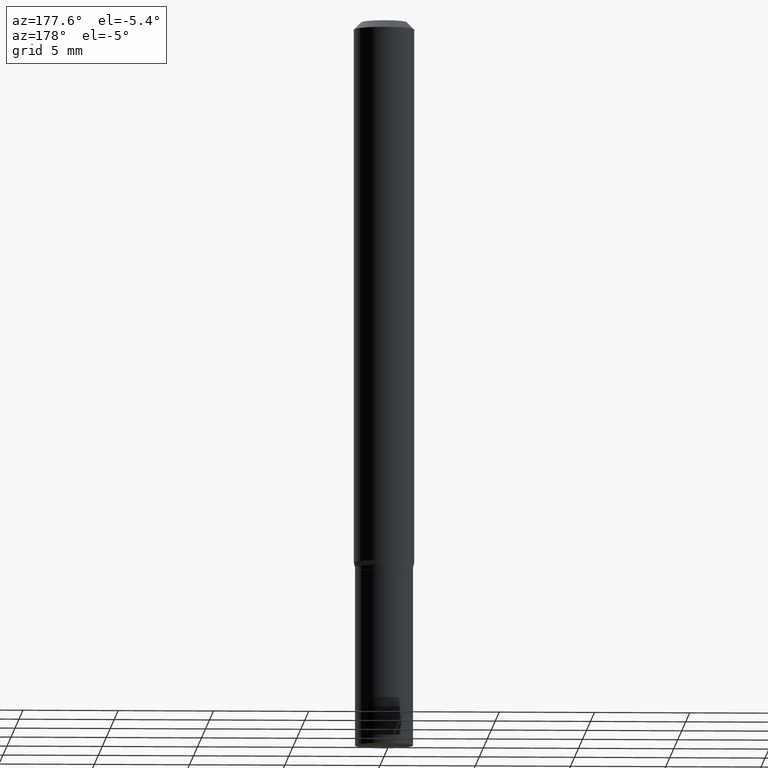
[diagram: clean part render]
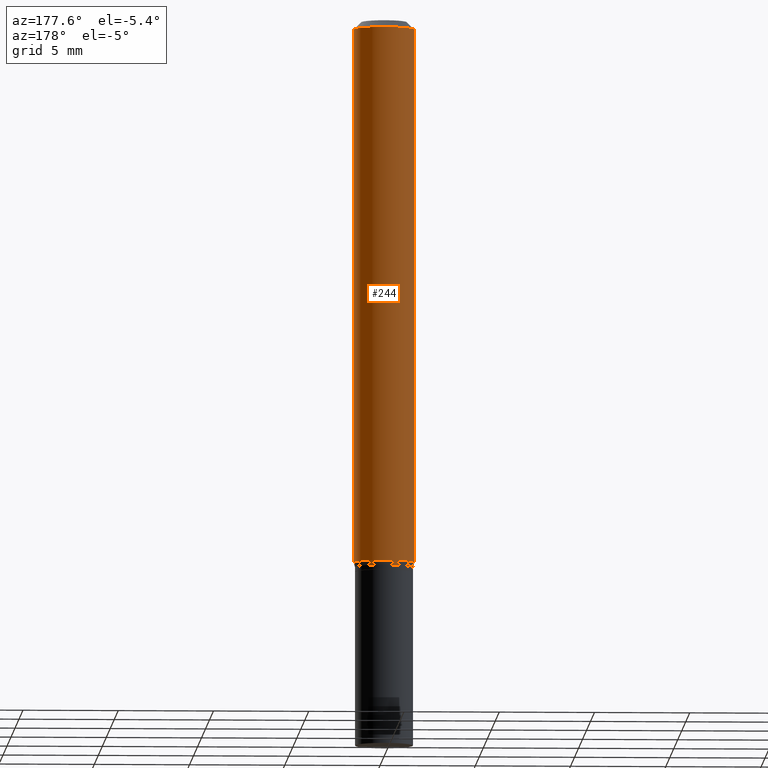
[diagram: same view with one face highlighted and labeled with its STEP entity id]
A machine part, auxiliary view. The second image highlights one B-rep face of the part: STEP entity #244.
In plain terms, the highlighted cylindrical surface (edge-blend (fillet) strip) has radius 1.5875 mm, axis along (-0, 0, 1).
Its self-contained STEP definition (entity closure, byte-faithful):
#7 = DIRECTION ( 'NONE',  ( -2.445468806185136597E-29, 3.491481338843145583E-15, 1.000000000000000000 ) ) ;
#21 = DIRECTION ( 'NONE',  ( -2.445468806185136877E-29, 3.491481338843145188E-15, 1.000000000000000000 ) ) ;
#46 = EDGE_CURVE ( 'NONE', #380, #305, #126, .T. ) ;
#71 = VECTOR ( 'NONE', #268, 39.37007874015748143 ) ;
#76 = DIRECTION ( 'NONE',  ( 1.000000000000000000, -6.982962677686270655E-15, 0.000000000000000000 ) ) ;
#87 = AXIS2_PLACEMENT_3D ( 'NONE', #297, #445, #203 ) ;
#120 = CARTESIAN_POINT ( 'NONE',  ( -0.06250000000000000000, -1.538495874449838155E-15, -0.01499999999999999944 ) ) ;
#125 = EDGE_LOOP ( 'NONE', ( #410, #295, #220, #287 ) ) ;
#126 = CIRCLE ( 'NONE', #462, 0.06250000000000000000 ) ;
#135 = DIRECTION ( 'NONE',  ( -2.445468806185136597E-29, 3.491481338843145583E-15, 1.000000000000000000 ) ) ;
#162 = CARTESIAN_POINT ( 'NONE',  ( 0.06250000000000000000, -4.349233115872546527E-15, -1.120669872981078674 ) ) ;
#170 = CARTESIAN_POINT ( 'NONE',  ( 3.668203209277705088E-31, -5.237222008264718399E-17, -0.01499999999999999944 ) ) ;
#203 = DIRECTION ( 'NONE',  ( 1.000000000000000000, -6.982962677686266711E-15, 4.876176775795935793E-29 ) ) ;
#212 = AXIS2_PLACEMENT_3D ( 'NONE', #261, #7, #76 ) ;
#220 = ORIENTED_EDGE ( 'NONE', *, *, #46, .F. ) ;
#232 = VECTOR ( 'NONE', #21, 39.37007874015748143 ) ;
#238 = LINE ( 'NONE', #341, #232 ) ;
#239 = VERTEX_POINT ( 'NONE', #162 ) ;
#244 = ADVANCED_FACE ( 'NONE', ( #304 ), #414, .T. ) ;
#261 = CARTESIAN_POINT ( 'NONE',  ( 2.740563216406686834E-29, -3.912797948517154069E-15, -1.120669872981078674 ) ) ;
#264 = VERTEX_POINT ( 'NONE', #412 ) ;
#266 = CARTESIAN_POINT ( 'NONE',  ( 0.06250000000000000000, -4.364351673553916694E-16, 3.047610484872459871E-30 ) ) ;
#268 = DIRECTION ( 'NONE',  ( -2.445468806185136877E-29, 3.491481338843145188E-15, 1.000000000000000000 ) ) ;
#270 = EDGE_CURVE ( 'NONE', #264, #305, #238, .T. ) ;
#287 = ORIENTED_EDGE ( 'NONE', *, *, #443, .F. ) ;
#295 = ORIENTED_EDGE ( 'NONE', *, *, #270, .T. ) ;
#297 = CARTESIAN_POINT ( 'NONE',  ( 0.000000000000000000, 0.000000000000000000, 0.000000000000000000 ) ) ;
#304 = FACE_OUTER_BOUND ( 'NONE', #125, .T. ) ;
#305 = VERTEX_POINT ( 'NONE', #120 ) ;
#340 = LINE ( 'NONE', #266, #71 ) ;
#341 = CARTESIAN_POINT ( 'NONE',  ( -0.06250000000000000000, 4.440892098500626162E-16, -3.074334431409316114E-30 ) ) ;
#361 = EDGE_CURVE ( 'NONE', #239, #264, #431, .T. ) ;
#363 = CARTESIAN_POINT ( 'NONE',  ( 0.06250000000000000000, -4.888073874380388472E-16, -0.01499999999999999944 ) ) ;
#380 = VERTEX_POINT ( 'NONE', #363 ) ;
#410 = ORIENTED_EDGE ( 'NONE', *, *, #361, .T. ) ;
#412 = CARTESIAN_POINT ( 'NONE',  ( -0.06250000000000000000, -3.468708738667092242E-15, -1.120669872981078674 ) ) ;
#414 = CYLINDRICAL_SURFACE ( 'NONE', #87, 0.06250000000000000000 ) ;
#431 = CIRCLE ( 'NONE', #212, 0.06250000000000000000 ) ;
#443 = EDGE_CURVE ( 'NONE', #239, #380, #340, .T. ) ;
#445 = DIRECTION ( 'NONE',  ( -2.445468806185136597E-29, 3.491481338843145583E-15, 1.000000000000000000 ) ) ;
#462 = AXIS2_PLACEMENT_3D ( 'NONE', #170, #135, #463 ) ;
#463 = DIRECTION ( 'NONE',  ( 1.000000000000000000, -6.982962677686266711E-15, 0.000000000000000000 ) ) ;